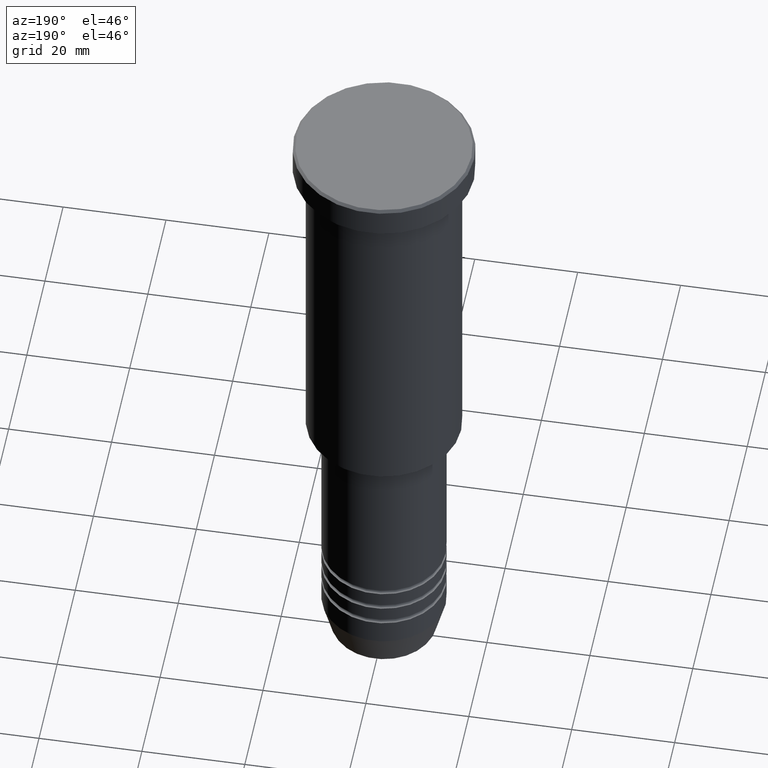
[diagram: clean part render]
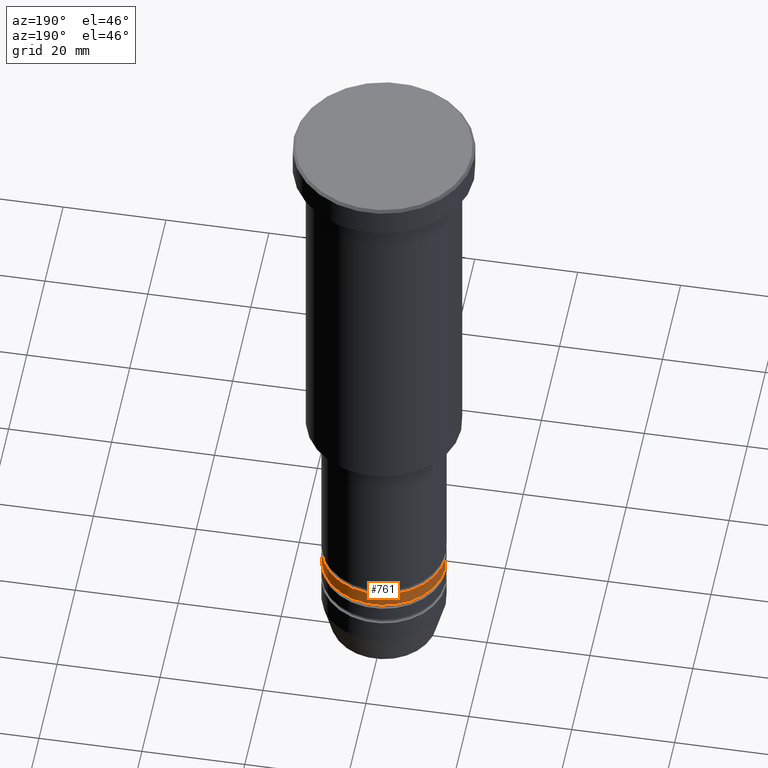
[diagram: same view with one face highlighted and labeled with its STEP entity id]
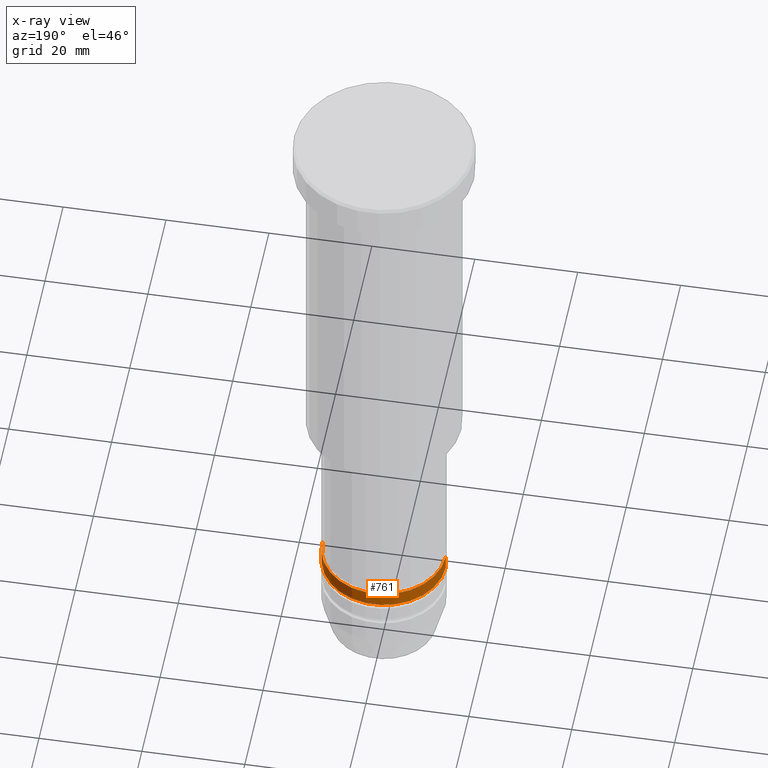
[diagram: x-ray of the same camera — body ghosted, the highlighted face saturated]
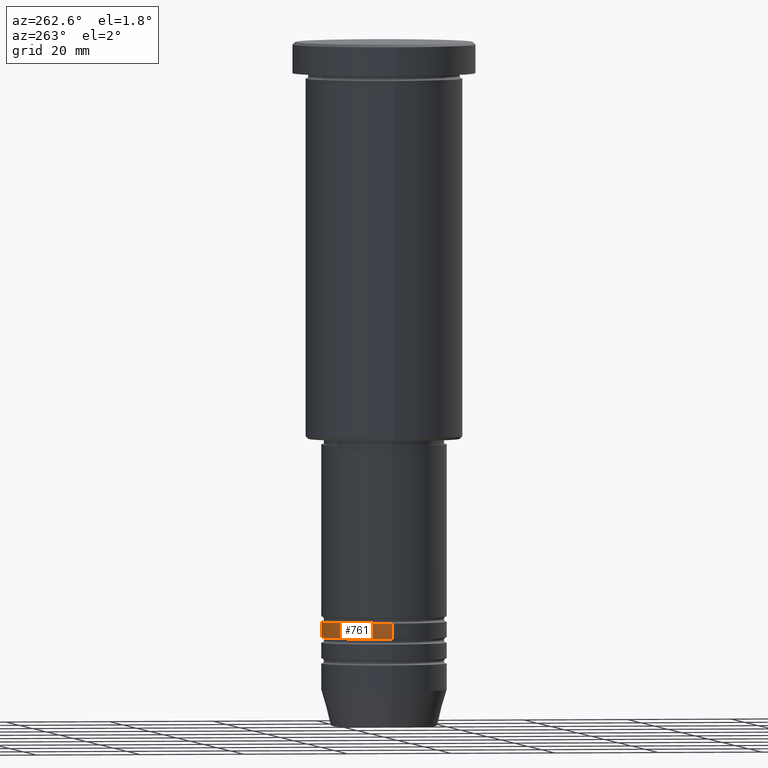
[diagram: same view with one face highlighted and labeled with its STEP entity id]
A machine part, auxiliary view. The second image highlights one B-rep face of the part: STEP entity #761.
The next image is the same camera in x-ray: the body ghosted, the highlighted face saturated — about 0% of this face is hidden behind the body in this view.
A second angle (auxiliary view) of the same face is appended — the face is thin or edge-on in the first view.
In plain terms, the highlighted cylindrical surface (partial cylindrical patch) has radius 12 mm, axis along (-0, -0, 1).
Its self-contained STEP definition (entity closure, byte-faithful):
#1 = CARTESIAN_POINT ( 'NONE',  ( 0.000000000000000000, 0.000000000000000000, -113.9999999999999005 ) ) ;
#7 = CARTESIAN_POINT ( 'NONE',  ( 0.000000000000000000, 0.000000000000000000, -110.9999999999998863 ) ) ;
#33 = DIRECTION ( 'NONE',  ( -0.000000000000000000, -0.000000000000000000, 1.000000000000000000 ) ) ;
#37 = ORIENTED_EDGE ( 'NONE', *, *, #465, .F. ) ;
#44 = ORIENTED_EDGE ( 'NONE', *, *, #316, .F. ) ;
#55 = VERTEX_POINT ( 'NONE', #445 ) ;
#117 = CARTESIAN_POINT ( 'NONE',  ( 12.00000000000000355, 0.000000000000000000, -113.9999999999999005 ) ) ;
#136 = DIRECTION ( 'NONE',  ( 1.000000000000000000, 0.000000000000000000, 0.000000000000000000 ) ) ;
#202 = EDGE_CURVE ( 'NONE', #419, #441, #1114, .T. ) ;
#206 = DIRECTION ( 'NONE',  ( 1.000000000000000000, 0.000000000000000000, 0.000000000000000000 ) ) ;
#226 = ORIENTED_EDGE ( 'NONE', *, *, #1053, .T. ) ;
#230 = CYLINDRICAL_SURFACE ( 'NONE', #1174, 12.00000000000000178 ) ;
#232 = VERTEX_POINT ( 'NONE', #1144 ) ;
#242 = FACE_OUTER_BOUND ( 'NONE', #334, .T. ) ;
#295 = DIRECTION ( 'NONE',  ( 1.000000000000000000, 0.000000000000000000, 0.000000000000000000 ) ) ;
#316 = EDGE_CURVE ( 'NONE', #419, #55, #522, .T. ) ;
#334 = EDGE_LOOP ( 'NONE', ( #435, #226, #37, #44 ) ) ;
#377 = DIRECTION ( 'NONE',  ( -0.000000000000000000, -0.000000000000000000, 1.000000000000000000 ) ) ;
#383 = DIRECTION ( 'NONE',  ( -0.000000000000000000, -0.000000000000000000, 1.000000000000000000 ) ) ;
#419 = VERTEX_POINT ( 'NONE', #117 ) ;
#435 = ORIENTED_EDGE ( 'NONE', *, *, #202, .T. ) ;
#441 = VERTEX_POINT ( 'NONE', #845 ) ;
#445 = CARTESIAN_POINT ( 'NONE',  ( 12.00000000000000000, 0.000000000000000000, -110.9999999999998863 ) ) ;
#465 = EDGE_CURVE ( 'NONE', #55, #232, #515, .T. ) ;
#515 = CIRCLE ( 'NONE', #1150, 12.00000000000000000 ) ;
#522 = LINE ( 'NONE', #858, #1085 ) ;
#622 = AXIS2_PLACEMENT_3D ( 'NONE', #1, #377, #206 ) ;
#674 = LINE ( 'NONE', #833, #1133 ) ;
#761 = ADVANCED_FACE ( 'NONE', ( #242 ), #230, .T. ) ;
#784 = CARTESIAN_POINT ( 'NONE',  ( 0.000000000000000000, 0.000000000000000000, 0.000000000000000000 ) ) ;
#833 = CARTESIAN_POINT ( 'NONE',  ( -12.00000000000000178, 1.469576158976824144E-15, 0.000000000000000000 ) ) ;
#845 = CARTESIAN_POINT ( 'NONE',  ( -12.00000000000000533, 1.469576158976824539E-15, -113.9999999999999005 ) ) ;
#858 = CARTESIAN_POINT ( 'NONE',  ( 12.00000000000000178, 0.000000000000000000, 0.000000000000000000 ) ) ;
#951 = DIRECTION ( 'NONE',  ( -0.000000000000000000, -0.000000000000000000, 1.000000000000000000 ) ) ;
#1028 = DIRECTION ( 'NONE',  ( -0.000000000000000000, -0.000000000000000000, 1.000000000000000000 ) ) ;
#1053 = EDGE_CURVE ( 'NONE', #441, #232, #674, .T. ) ;
#1085 = VECTOR ( 'NONE', #33, 1000.000000000000000 ) ;
#1114 = CIRCLE ( 'NONE', #622, 12.00000000000000355 ) ;
#1133 = VECTOR ( 'NONE', #1028, 1000.000000000000000 ) ;
#1144 = CARTESIAN_POINT ( 'NONE',  ( -12.00000000000000000, 1.469576158976824144E-15, -110.9999999999998863 ) ) ;
#1150 = AXIS2_PLACEMENT_3D ( 'NONE', #7, #383, #295 ) ;
#1174 = AXIS2_PLACEMENT_3D ( 'NONE', #784, #951, #136 ) ;